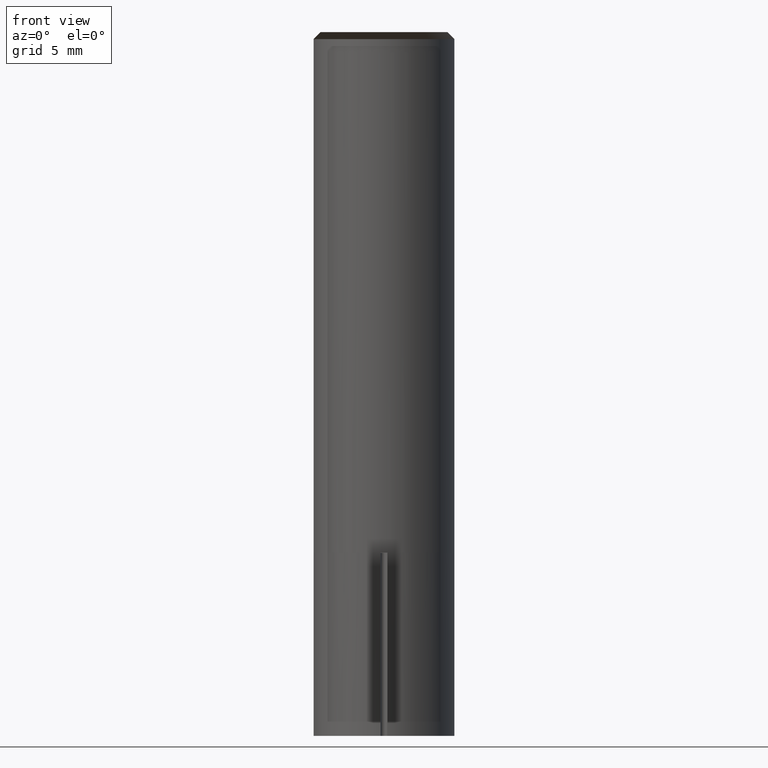
[diagram: clean part render]
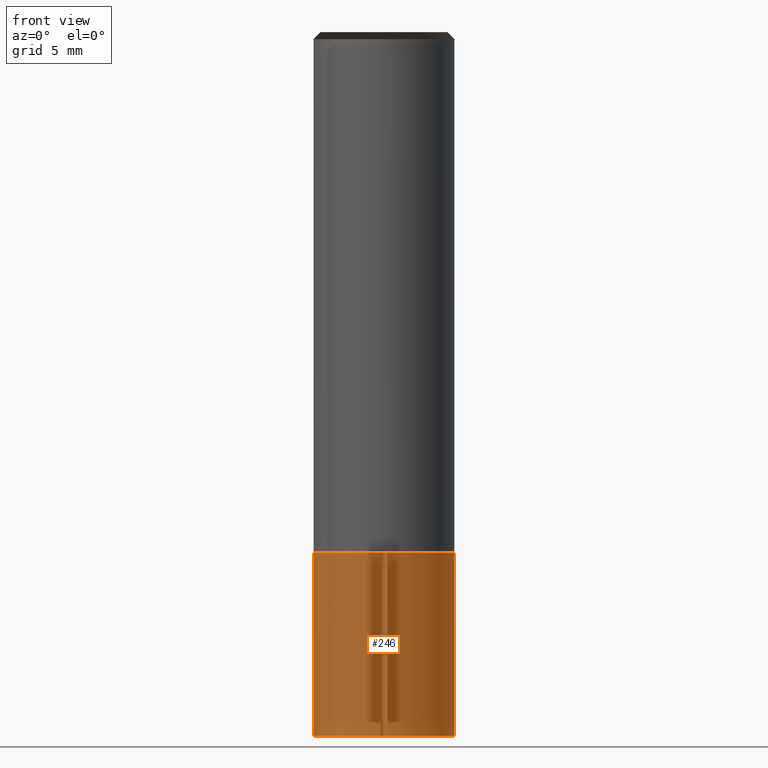
[diagram: same view with one face highlighted and labeled with its STEP entity id]
A machine part, front view. The second image highlights one B-rep face of the part: STEP entity #246.
In plain terms, the highlighted face is a freeform B-spline surface patch.
Its self-contained STEP definition (entity closure, byte-faithful):
#76=CARTESIAN_POINT('',(5.0,0.0,-13.0));
#80=CARTESIAN_POINT('',(-5.0,0.0,-13.0));
#81=CARTESIAN_POINT('',(5.0,0.0,0.0));
#85=CARTESIAN_POINT('',(-5.0,0.0,0.0));
#94=CARTESIAN_POINT('',(-5.0,-5.0,-13.0));
#95=CARTESIAN_POINT('',(0.0,-5.0,-13.0));
#96=CARTESIAN_POINT('',(5.0,-5.0,-13.0));
#97=CARTESIAN_POINT('',(-5.0,-5.0,0.0));
#98=CARTESIAN_POINT('',(0.0,-5.0,0.0));
#99=CARTESIAN_POINT('',(5.0,-5.0,0.0));
#227=(
BOUNDED_SURFACE()
B_SPLINE_SURFACE(1,2,(
(#80,#94,#95,#96,#76),
(#85,#97,#98,#99,#81)
), .UNSPECIFIED.,.F.,.F.,.F.)
B_SPLINE_SURFACE_WITH_KNOTS((2,2),(3,2,3),(
0.0,1.0),(
0.0,0.5,1.0), .UNSPECIFIED.)
GEOMETRIC_REPRESENTATION_ITEM()
RATIONAL_B_SPLINE_SURFACE(((1.0,0.707106781187,1.0,0.707106781187,1.0),
(1.0,0.707106781187,1.0,0.707106781187,1.0)
))
REPRESENTATION_ITEM('')
SURFACE()
);
#228=(
BOUNDED_CURVE()
B_SPLINE_CURVE(2,(#76,#96,#95,#94,#80),.UNSPECIFIED.,.F.,.F.)
B_SPLINE_CURVE_WITH_KNOTS((3,2,3),
(0.0,0.5,1.0),.UNSPECIFIED.)
CURVE()
GEOMETRIC_REPRESENTATION_ITEM()
RATIONAL_B_SPLINE_CURVE((1.0,0.707106781187,1.0,0.707106781187,1.0))
REPRESENTATION_ITEM('')
);
#229=(
BOUNDED_CURVE()
B_SPLINE_CURVE(1,(#80,#85),.UNSPECIFIED.,.F.,.F.)
B_SPLINE_CURVE_WITH_KNOTS((2,2),
(0.0,1.0),.UNSPECIFIED.)
CURVE()
GEOMETRIC_REPRESENTATION_ITEM()
RATIONAL_B_SPLINE_CURVE((1.0,1.0))
REPRESENTATION_ITEM('')
);
#230=(
BOUNDED_CURVE()
B_SPLINE_CURVE(2,(#85,#97,#98,#99,#81),.UNSPECIFIED.,.F.,.F.)
B_SPLINE_CURVE_WITH_KNOTS((3,2,3),
(0.0,0.5,1.0),.UNSPECIFIED.)
CURVE()
GEOMETRIC_REPRESENTATION_ITEM()
RATIONAL_B_SPLINE_CURVE((1.0,0.707106781187,1.0,0.707106781187,1.0))
REPRESENTATION_ITEM('')
);
#231=(
BOUNDED_CURVE()
B_SPLINE_CURVE(1,(#81,#76),.UNSPECIFIED.,.F.,.F.)
B_SPLINE_CURVE_WITH_KNOTS((2,2),
(0.0,1.0),.UNSPECIFIED.)
CURVE()
GEOMETRIC_REPRESENTATION_ITEM()
RATIONAL_B_SPLINE_CURVE((1.0,1.0))
REPRESENTATION_ITEM('')
);
#232=VERTEX_POINT('',#76);
#233=VERTEX_POINT('',#80);
#234=VERTEX_POINT('',#81);
#235=VERTEX_POINT('',#85);
#236=EDGE_CURVE('',#232,#233,#228,.T.);
#237=EDGE_CURVE('',#233,#235,#229,.T.);
#238=EDGE_CURVE('',#235,#234,#230,.T.);
#239=EDGE_CURVE('',#234,#232,#231,.T.);
#240=ORIENTED_EDGE('',*,*,#236,.T.);
#241=ORIENTED_EDGE('',*,*,#237,.T.);
#242=ORIENTED_EDGE('',*,*,#238,.T.);
#243=ORIENTED_EDGE('',*,*,#239,.T.);
#244=EDGE_LOOP('',(#240,#241,#242,#243));
#245=FACE_OUTER_BOUND('',#244,.T.);
#246=ADVANCED_FACE('',(#245),#227,.T.);